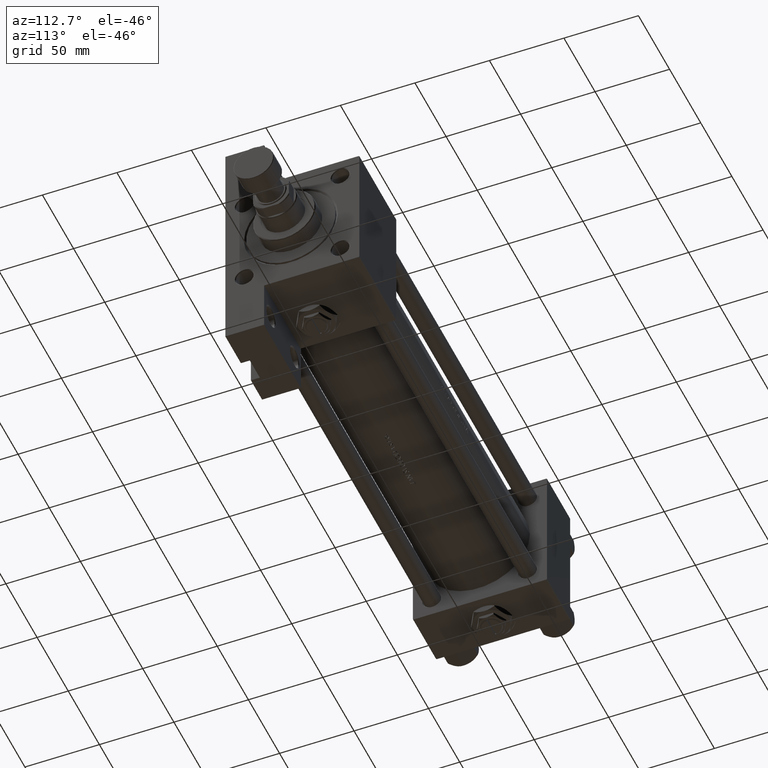
[diagram: clean part render]
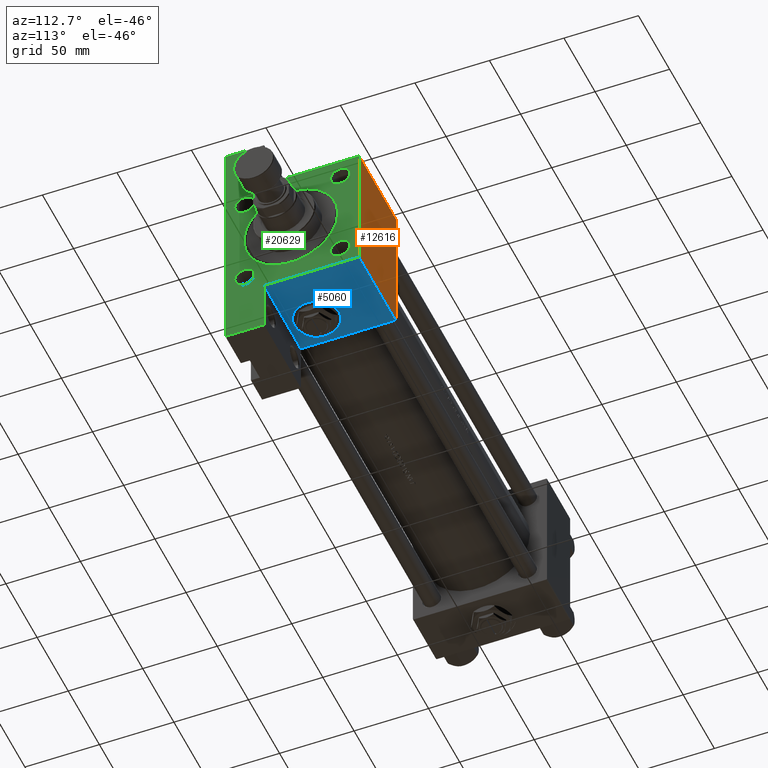
[diagram: same view with three faces highlighted in distinct colors, each labeled with its STEP entity id]
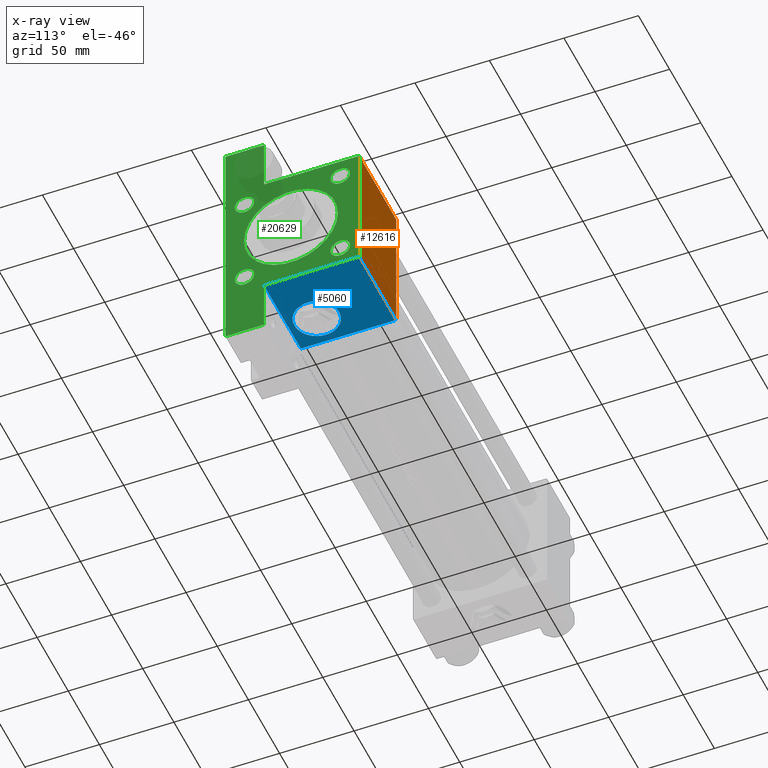
[diagram: x-ray of the same camera — body ghosted, the three highlighted faces saturated]
A machine part, auxiliary view with three faces highlighted in distinct colors.
The next image is the same camera in x-ray (body ghosted, the three faces saturated) — at least one of them is partly hidden behind the body in this view.
Their STEP definitions:

[orange] entity #12616 — the highlighted planar face has unit normal (0, -1, -0).
#102 = VERTEX_POINT ( 'NONE', #15625 ) ;
#1323 = ORIENTED_EDGE ( 'NONE', *, *, #30896, .F. ) ;
#3008 = VERTEX_POINT ( 'NONE', #27130 ) ;
#3516 = VERTEX_POINT ( 'NONE', #39500 ) ;
#4083 = EDGE_LOOP ( 'NONE', ( #1323, #29032, #5149, #20245 ) ) ;
#5149 = ORIENTED_EDGE ( 'NONE', *, *, #17179, .T. ) ;
#5211 = CARTESIAN_POINT ( 'NONE',  ( 278.9999999999999432, 45.00000000000001421, 45.00000000000000000 ) ) ;
#5922 = CARTESIAN_POINT ( 'NONE',  ( 278.9999999999999432, 44.49999999999995737, 45.00000000000000000 ) ) ;
#6858 = VECTOR ( 'NONE', #15537, 1000.000000000000000 ) ;
#8476 = CARTESIAN_POINT ( 'NONE',  ( 337.9999999999999432, 45.00000000000001421, 45.00000000000000000 ) ) ;
#9228 = CARTESIAN_POINT ( 'NONE',  ( 337.9999999999999432, 44.49999999999995737, 45.00000000000000000 ) ) ;
#10705 = EDGE_CURVE ( 'NONE', #3008, #3516, #31831, .T. ) ;
#11267 = FACE_OUTER_BOUND ( 'NONE', #4083, .T. ) ;
#12616 = ADVANCED_FACE ( 'NONE', ( #11267 ), #18886, .F. ) ;
#15537 = DIRECTION ( 'NONE',  ( 0.000000000000000000, -1.000000000000000000, -1.541976423090495140E-16 ) ) ;
#15625 = CARTESIAN_POINT ( 'NONE',  ( 278.9999999999999432, 44.49999999999995737, 45.00000000000000000 ) ) ;
#15788 = CARTESIAN_POINT ( 'NONE',  ( 337.9999999999999432, 45.00000000000001421, 45.00000000000000000 ) ) ;
#17179 = EDGE_CURVE ( 'NONE', #102, #3008, #24738, .T. ) ;
#18886 = PLANE ( 'NONE',  #30820 ) ;
#20245 = ORIENTED_EDGE ( 'NONE', *, *, #10705, .T. ) ;
#22803 = VECTOR ( 'NONE', #26208, 1000.000000000000000 ) ;
#23157 = LINE ( 'NONE', #15788, #6858 ) ;
#23715 = DIRECTION ( 'NONE',  ( 1.000000000000000000, 0.000000000000000000, 0.000000000000000000 ) ) ;
#24606 = VERTEX_POINT ( 'NONE', #9228 ) ;
#24699 = EDGE_CURVE ( 'NONE', #24606, #102, #40699, .T. ) ;
#24738 = LINE ( 'NONE', #5211, #28356 ) ;
#26208 = DIRECTION ( 'NONE',  ( -1.000000000000000000, 0.000000000000000000, 0.000000000000000000 ) ) ;
#27130 = CARTESIAN_POINT ( 'NONE',  ( 278.9999999999999432, -44.49999999999997158, 44.99999999999998579 ) ) ;
#27527 = CARTESIAN_POINT ( 'NONE',  ( 337.9999999999999432, -44.50000000000000000, 44.99999999999998579 ) ) ;
#28356 = VECTOR ( 'NONE', #36177, 1000.000000000000000 ) ;
#29032 = ORIENTED_EDGE ( 'NONE', *, *, #24699, .T. ) ;
#30820 = AXIS2_PLACEMENT_3D ( 'NONE', #8476, #42267, #35143 ) ;
#30896 = EDGE_CURVE ( 'NONE', #24606, #3516, #23157, .T. ) ;
#31831 = LINE ( 'NONE', #27527, #35613 ) ;
#35143 = DIRECTION ( 'NONE',  ( 0.000000000000000000, 1.000000000000000000, 1.541976423090495387E-16 ) ) ;
#35613 = VECTOR ( 'NONE', #23715, 1000.000000000000000 ) ;
#36177 = DIRECTION ( 'NONE',  ( 0.000000000000000000, -1.000000000000000000, -1.541976423090495140E-16 ) ) ;
#39500 = CARTESIAN_POINT ( 'NONE',  ( 337.9999999999999432, -44.49999999999997158, 44.99999999999998579 ) ) ;
#40699 = LINE ( 'NONE', #5922, #22803 ) ;
#42267 = DIRECTION ( 'NONE',  ( 0.000000000000000000, 1.541976423090495387E-16, -1.000000000000000000 ) ) ;

[blue] entity #5060 — the highlighted planar face has unit normal (0, 0, -1).
#1120 = PLANE ( 'NONE',  #46741 ) ;
#3018 = EDGE_CURVE ( 'NONE', #5992, #12682, #42623, .T. ) ;
#4328 = CIRCLE ( 'NONE', #19752, 15.00000000000002487 ) ;
#4395 = ORIENTED_EDGE ( 'NONE', *, *, #3018, .T. ) ;
#4918 = VECTOR ( 'NONE', #46767, 1000.000000000000000 ) ;
#4935 = VERTEX_POINT ( 'NONE', #18881 ) ;
#5060 = ADVANCED_FACE ( 'NONE', ( #20383, #23702 ), #1120, .T. ) ;
#5992 = VERTEX_POINT ( 'NONE', #27411 ) ;
#6739 = DIRECTION ( 'NONE',  ( 0.000000000000000000, 0.000000000000000000, 1.000000000000000000 ) ) ;
#8947 = EDGE_CURVE ( 'NONE', #25109, #5992, #23132, .T. ) ;
#9787 = DIRECTION ( 'NONE',  ( 0.000000000000000000, 1.000000000000000000, 0.000000000000000000 ) ) ;
#10996 = ORIENTED_EDGE ( 'NONE', *, *, #13813, .F. ) ;
#11767 = CARTESIAN_POINT ( 'NONE',  ( 337.9999999999999432, 45.00000000000001421, 45.00000000000000000 ) ) ;
#11936 = VECTOR ( 'NONE', #30938, 1000.000000000000000 ) ;
#12356 = EDGE_LOOP ( 'NONE', ( #33372, #29612 ) ) ;
#12631 = VECTOR ( 'NONE', #33124, 1000.000000000000000 ) ;
#12682 = VERTEX_POINT ( 'NONE', #13020 ) ;
#13020 = CARTESIAN_POINT ( 'NONE',  ( 337.9999999999999432, 44.99999999999992895, -19.00000000000000000 ) ) ;
#13813 = EDGE_CURVE ( 'NONE', #25109, #26852, #31029, .T. ) ;
#15763 = CARTESIAN_POINT ( 'NONE',  ( 337.9999999999999432, 45.00000000000001421, 44.49999999999994316 ) ) ;
#16989 = AXIS2_PLACEMENT_3D ( 'NONE', #49563, #49306, #34327 ) ;
#18881 = CARTESIAN_POINT ( 'NONE',  ( 299.0000000000000000, 45.00000000000001421, 15.00000000000002487 ) ) ;
#19303 = DIRECTION ( 'NONE',  ( 1.000000000000000000, 0.000000000000000000, 0.000000000000000000 ) ) ;
#19458 = ORIENTED_EDGE ( 'NONE', *, *, #38460, .T. ) ;
#19752 = AXIS2_PLACEMENT_3D ( 'NONE', #29351, #9787, #6739 ) ;
#20383 = FACE_BOUND ( 'NONE', #12356, .T. ) ;
#20768 = CARTESIAN_POINT ( 'NONE',  ( 299.0000000000000000, 45.00000000000001421, -15.00000000000002487 ) ) ;
#21083 = EDGE_CURVE ( 'NONE', #4935, #30064, #27562, .T. ) ;
#22477 = ORIENTED_EDGE ( 'NONE', *, *, #8947, .T. ) ;
#23132 = LINE ( 'NONE', #15763, #38004 ) ;
#23702 = FACE_OUTER_BOUND ( 'NONE', #27727, .T. ) ;
#24301 = CARTESIAN_POINT ( 'NONE',  ( 278.9999999999999432, 45.00000000000001421, -18.99999999999997513 ) ) ;
#25109 = VERTEX_POINT ( 'NONE', #40895 ) ;
#26852 = VERTEX_POINT ( 'NONE', #24301 ) ;
#27411 = CARTESIAN_POINT ( 'NONE',  ( 337.9999999999999432, 45.00000000000001421, 44.49999999999994316 ) ) ;
#27562 = CIRCLE ( 'NONE', #16989, 15.00000000000002487 ) ;
#27727 = EDGE_LOOP ( 'NONE', ( #10996, #22477, #4395, #19458 ) ) ;
#29351 = CARTESIAN_POINT ( 'NONE',  ( 299.0000000000000000, 45.00000000000001421, 0.000000000000000000 ) ) ;
#29612 = ORIENTED_EDGE ( 'NONE', *, *, #29652, .F. ) ;
#29652 = EDGE_CURVE ( 'NONE', #30064, #4935, #4328, .T. ) ;
#30064 = VERTEX_POINT ( 'NONE', #20768 ) ;
#30938 = DIRECTION ( 'NONE',  ( 0.000000000000000000, 0.000000000000000000, -1.000000000000000000 ) ) ;
#31029 = LINE ( 'NONE', #46516, #4918 ) ;
#32129 = LINE ( 'NONE', #44566, #12631 ) ;
#33124 = DIRECTION ( 'NONE',  ( -1.000000000000000000, 1.411300455031978640E-15, -0.000000000000000000 ) ) ;
#33372 = ORIENTED_EDGE ( 'NONE', *, *, #21083, .F. ) ;
#34327 = DIRECTION ( 'NONE',  ( 0.000000000000000000, 0.000000000000000000, 1.000000000000000000 ) ) ;
#38004 = VECTOR ( 'NONE', #19303, 1000.000000000000000 ) ;
#38460 = EDGE_CURVE ( 'NONE', #12682, #26852, #32129, .T. ) ;
#39203 = DIRECTION ( 'NONE',  ( -0.000000000000000000, 1.000000000000000000, 0.000000000000000000 ) ) ;
#40895 = CARTESIAN_POINT ( 'NONE',  ( 278.9999999999999432, 45.00000000000001421, 44.49999999999994316 ) ) ;
#42623 = LINE ( 'NONE', #45925, #11936 ) ;
#44566 = CARTESIAN_POINT ( 'NONE',  ( 278.9999999999999432, 45.00000000000001421, -19.00000000000000000 ) ) ;
#45925 = CARTESIAN_POINT ( 'NONE',  ( 337.9999999999999432, 45.00000000000001421, 45.00000000000000000 ) ) ;
#46516 = CARTESIAN_POINT ( 'NONE',  ( 278.9999999999999432, 45.00000000000001421, 45.00000000000000000 ) ) ;
#46741 = AXIS2_PLACEMENT_3D ( 'NONE', #11767, #39203, #47314 ) ;
#46767 = DIRECTION ( 'NONE',  ( 0.000000000000000000, 0.000000000000000000, -1.000000000000000000 ) ) ;
#47314 = DIRECTION ( 'NONE',  ( 0.000000000000000000, -0.000000000000000000, 1.000000000000000000 ) ) ;
#49306 = DIRECTION ( 'NONE',  ( 0.000000000000000000, 1.000000000000000000, 0.000000000000000000 ) ) ;
#49563 = CARTESIAN_POINT ( 'NONE',  ( 299.0000000000000000, 45.00000000000001421, 0.000000000000000000 ) ) ;

[green] entity #20629 — the highlighted planar face has unit normal (-1, 0, -0).
#756 = CIRCLE ( 'NONE', #13700, 6.499999999999950262 ) ;
#923 = VECTOR ( 'NONE', #25847, 1000.000000000000000 ) ;
#1228 = DIRECTION ( 'NONE',  ( -0.000000000000000000, -0.7071067811865474617, -0.7071067811865474617 ) ) ;
#2004 = EDGE_CURVE ( 'NONE', #44232, #39288, #42730, .T. ) ;
#2336 = VERTEX_POINT ( 'NONE', #37004 ) ;
#3018 = EDGE_CURVE ( 'NONE', #5992, #12682, #42623, .T. ) ;
#3406 = DIRECTION ( 'NONE',  ( -1.000000000000000000, -0.000000000000000000, -0.000000000000000000 ) ) ;
#3516 = VERTEX_POINT ( 'NONE', #39500 ) ;
#3526 = CARTESIAN_POINT ( 'NONE',  ( 337.9999999999999432, 32.14999999999999147, -32.15000000000000568 ) ) ;
#3775 = DIRECTION ( 'NONE',  ( -1.000000000000000000, -0.000000000000000000, -0.000000000000000000 ) ) ;
#3867 = CIRCLE ( 'NONE', #39530, 6.499999999999950262 ) ;
#4065 = CIRCLE ( 'NONE', #24311, 6.499999999999950262 ) ;
#4299 = LINE ( 'NONE', #19766, #45328 ) ;
#4377 = CARTESIAN_POINT ( 'NONE',  ( 337.9999999999999432, 0.000000000000000000, -1.000000000000000888 ) ) ;
#4486 = LINE ( 'NONE', #18947, #39266 ) ;
#4634 = CARTESIAN_POINT ( 'NONE',  ( 337.9999999999999432, -32.15000000000001279, -32.15000000000000568 ) ) ;
#5122 = LINE ( 'NONE', #28218, #11667 ) ;
#5635 = CIRCLE ( 'NONE', #43770, 6.499999999999950262 ) ;
#5714 = CARTESIAN_POINT ( 'NONE',  ( 337.9999999999999432, 79.99999999999998579, -19.00000000000000000 ) ) ;
#5850 = DIRECTION ( 'NONE',  ( -1.000000000000000000, -0.000000000000000000, -0.000000000000000000 ) ) ;
#5992 = VERTEX_POINT ( 'NONE', #27411 ) ;
#6026 = ORIENTED_EDGE ( 'NONE', *, *, #30896, .T. ) ;
#6110 = VERTEX_POINT ( 'NONE', #43658 ) ;
#6654 = EDGE_CURVE ( 'NONE', #6110, #10194, #3867, .T. ) ;
#6842 = DIRECTION ( 'NONE',  ( -1.000000000000000000, 0.000000000000000000, -0.000000000000000000 ) ) ;
#6858 = VECTOR ( 'NONE', #15537, 1000.000000000000000 ) ;
#7314 = CIRCLE ( 'NONE', #10578, 31.49999999999997158 ) ;
#7764 = LINE ( 'NONE', #39005, #45071 ) ;
#7786 = CIRCLE ( 'NONE', #36180, 6.499999999999950262 ) ;
#8678 = DIRECTION ( 'NONE',  ( 0.000000000000000000, 0.000000000000000000, 1.000000000000000000 ) ) ;
#8931 = VERTEX_POINT ( 'NONE', #22375 ) ;
#9056 = CARTESIAN_POINT ( 'NONE',  ( 337.9999999999999432, -32.15000000000001279, -32.15000000000000568 ) ) ;
#9105 = CARTESIAN_POINT ( 'NONE',  ( 337.9999999999999432, 79.99999999999998579, -45.00000000000000000 ) ) ;
#9212 = CIRCLE ( 'NONE', #19748, 6.499999999999950262 ) ;
#9228 = CARTESIAN_POINT ( 'NONE',  ( 337.9999999999999432, 44.49999999999995737, 45.00000000000000000 ) ) ;
#10061 = ORIENTED_EDGE ( 'NONE', *, *, #15419, .T. ) ;
#10116 = LINE ( 'NONE', #45164, #923 ) ;
#10120 = EDGE_CURVE ( 'NONE', #16055, #8931, #4299, .T. ) ;
#10144 = FACE_BOUND ( 'NONE', #48028, .T. ) ;
#10194 = VERTEX_POINT ( 'NONE', #44894 ) ;
#10578 = AXIS2_PLACEMENT_3D ( 'NONE', #26562, #27572, #23006 ) ;
#10755 = EDGE_LOOP ( 'NONE', ( #40705, #23123, #6026, #44096, #11755, #16861, #10061, #40105, #49550, #47749 ) ) ;
#11483 = ORIENTED_EDGE ( 'NONE', *, *, #45547, .T. ) ;
#11667 = VECTOR ( 'NONE', #34837, 1000.000000000000114 ) ;
#11755 = ORIENTED_EDGE ( 'NONE', *, *, #37503, .T. ) ;
#11936 = VECTOR ( 'NONE', #30938, 1000.000000000000000 ) ;
#12169 = CARTESIAN_POINT ( 'NONE',  ( 337.9999999999999432, 32.14999999999999147, 38.64999999999995595 ) ) ;
#12627 = LINE ( 'NONE', #29825, #27601 ) ;
#12645 = LINE ( 'NONE', #27651, #21746 ) ;
#12682 = VERTEX_POINT ( 'NONE', #13020 ) ;
#13020 = CARTESIAN_POINT ( 'NONE',  ( 337.9999999999999432, 44.99999999999992895, -19.00000000000000000 ) ) ;
#13700 = AXIS2_PLACEMENT_3D ( 'NONE', #47397, #27599, #20715 ) ;
#14237 = ORIENTED_EDGE ( 'NONE', *, *, #46610, .T. ) ;
#14447 = PLANE ( 'NONE',  #19422 ) ;
#14745 = CARTESIAN_POINT ( 'NONE',  ( 337.9999999999999432, -32.14999999999999147, 25.65000000000004121 ) ) ;
#15419 = EDGE_CURVE ( 'NONE', #35065, #8931, #12645, .T. ) ;
#15537 = DIRECTION ( 'NONE',  ( 0.000000000000000000, -1.000000000000000000, -1.541976423090495140E-16 ) ) ;
#15788 = CARTESIAN_POINT ( 'NONE',  ( 337.9999999999999432, 45.00000000000001421, 45.00000000000000000 ) ) ;
#16055 = VERTEX_POINT ( 'NONE', #9105 ) ;
#16136 = DIRECTION ( 'NONE',  ( 0.000000000000000000, -1.000000000000000000, 0.000000000000000000 ) ) ;
#16422 = EDGE_CURVE ( 'NONE', #23546, #35916, #756, .T. ) ;
#16539 = DIRECTION ( 'NONE',  ( -1.000000000000000000, -0.000000000000000000, -0.000000000000000000 ) ) ;
#16861 = ORIENTED_EDGE ( 'NONE', *, *, #48633, .T. ) ;
#17257 = EDGE_CURVE ( 'NONE', #35916, #23546, #5635, .T. ) ;
#17996 = CARTESIAN_POINT ( 'NONE',  ( 337.9999999999999432, 0.000000000000000000, 0.000000000000000000 ) ) ;
#18020 = DIRECTION ( 'NONE',  ( 0.000000000000000000, 0.000000000000000000, 1.000000000000000000 ) ) ;
#18087 = CARTESIAN_POINT ( 'NONE',  ( 337.9999999999999432, -44.99999999999999289, -18.99999999999997513 ) ) ;
#18757 = CIRCLE ( 'NONE', #24418, 31.49999999999997158 ) ;
#18947 = CARTESIAN_POINT ( 'NONE',  ( 337.9999999999999432, 79.99999999999998579, -19.00000000000000000 ) ) ;
#19124 = EDGE_CURVE ( 'NONE', #3516, #27621, #12627, .T. ) ;
#19422 = AXIS2_PLACEMENT_3D ( 'NONE', #17996, #6842, #25625 ) ;
#19736 = DIRECTION ( 'NONE',  ( 0.000000000000000000, 0.000000000000000000, 1.000000000000000000 ) ) ;
#19748 = AXIS2_PLACEMENT_3D ( 'NONE', #9056, #44336, #48141 ) ;
#19766 = CARTESIAN_POINT ( 'NONE',  ( 337.9999999999999432, 45.00000000000001421, -45.00000000000000000 ) ) ;
#20629 = ADVANCED_FACE ( 'NONE', ( #37572, #33502, #41633, #21811, #10144, #37314 ), #14447, .F. ) ;
#20715 = DIRECTION ( 'NONE',  ( 0.000000000000000000, 0.000000000000000000, 1.000000000000000000 ) ) ;
#21405 = CIRCLE ( 'NONE', #41691, 6.499999999999950262 ) ;
#21746 = VECTOR ( 'NONE', #40071, 1000.000000000000000 ) ;
#21811 = FACE_BOUND ( 'NONE', #42665, .T. ) ;
#22029 = EDGE_LOOP ( 'NONE', ( #39840, #28224 ) ) ;
#22375 = CARTESIAN_POINT ( 'NONE',  ( 337.9999999999999432, -80.00000000000004263, -45.00000000000000000 ) ) ;
#23006 = DIRECTION ( 'NONE',  ( 0.000000000000000000, 0.000000000000000000, 1.000000000000000000 ) ) ;
#23123 = ORIENTED_EDGE ( 'NONE', *, *, #34458, .T. ) ;
#23157 = LINE ( 'NONE', #15788, #6858 ) ;
#23546 = VERTEX_POINT ( 'NONE', #30823 ) ;
#23757 = DIRECTION ( 'NONE',  ( 0.000000000000000000, 7.709882115452478166E-17, -1.000000000000000000 ) ) ;
#23774 = CARTESIAN_POINT ( 'NONE',  ( 337.9999999999999432, 79.99999999999998579, -19.00000000000000000 ) ) ;
#24311 = AXIS2_PLACEMENT_3D ( 'NONE', #3526, #3775, #19736 ) ;
#24418 = AXIS2_PLACEMENT_3D ( 'NONE', #4377, #43962, #8678 ) ;
#24606 = VERTEX_POINT ( 'NONE', #9228 ) ;
#25172 = ORIENTED_EDGE ( 'NONE', *, *, #38637, .T. ) ;
#25625 = DIRECTION ( 'NONE',  ( -0.000000000000000000, 0.000000000000000000, 1.000000000000000000 ) ) ;
#25847 = DIRECTION ( 'NONE',  ( -0.000000000000000000, -1.000000000000000000, -0.000000000000000000 ) ) ;
#26245 = ORIENTED_EDGE ( 'NONE', *, *, #6654, .T. ) ;
#26562 = CARTESIAN_POINT ( 'NONE',  ( 337.9999999999999432, 0.000000000000000000, -1.000000000000000888 ) ) ;
#27411 = CARTESIAN_POINT ( 'NONE',  ( 337.9999999999999432, 45.00000000000001421, 44.49999999999994316 ) ) ;
#27572 = DIRECTION ( 'NONE',  ( -1.000000000000000000, -0.000000000000000000, -0.000000000000000000 ) ) ;
#27586 = LINE ( 'NONE', #23774, #40090 ) ;
#27599 = DIRECTION ( 'NONE',  ( -1.000000000000000000, -0.000000000000000000, -0.000000000000000000 ) ) ;
#27601 = VECTOR ( 'NONE', #1228, 1000.000000000000114 ) ;
#27621 = VERTEX_POINT ( 'NONE', #40543 ) ;
#27651 = CARTESIAN_POINT ( 'NONE',  ( 337.9999999999999432, -80.00000000000004263, -19.00000000000000000 ) ) ;
#28218 = CARTESIAN_POINT ( 'NONE',  ( 337.9999999999999432, 44.49999999999995737, 45.00000000000000000 ) ) ;
#28224 = ORIENTED_EDGE ( 'NONE', *, *, #17257, .T. ) ;
#29396 = CARTESIAN_POINT ( 'NONE',  ( 337.9999999999999432, -32.14999999999999147, 38.64999999999994174 ) ) ;
#29579 = DIRECTION ( 'NONE',  ( -1.000000000000000000, -0.000000000000000000, -0.000000000000000000 ) ) ;
#29825 = CARTESIAN_POINT ( 'NONE',  ( 337.9999999999999432, -45.00000000000000000, 44.49999999999998579 ) ) ;
#30062 = CARTESIAN_POINT ( 'NONE',  ( 337.9999999999999432, 32.14999999999999147, 32.15000000000000568 ) ) ;
#30549 = DIRECTION ( 'NONE',  ( 0.000000000000000000, 0.000000000000000000, 1.000000000000000000 ) ) ;
#30823 = CARTESIAN_POINT ( 'NONE',  ( 337.9999999999999432, 32.14999999999999147, 25.65000000000005542 ) ) ;
#30896 = EDGE_CURVE ( 'NONE', #24606, #3516, #23157, .T. ) ;
#30938 = DIRECTION ( 'NONE',  ( 0.000000000000000000, 0.000000000000000000, -1.000000000000000000 ) ) ;
#31162 = EDGE_LOOP ( 'NONE', ( #47651, #25172 ) ) ;
#31533 = DIRECTION ( 'NONE',  ( 0.000000000000000000, 0.000000000000000000, 1.000000000000000000 ) ) ;
#31743 = EDGE_CURVE ( 'NONE', #37545, #12682, #4486, .T. ) ;
#31814 = EDGE_CURVE ( 'NONE', #37545, #16055, #27586, .T. ) ;
#33502 = FACE_BOUND ( 'NONE', #31162, .T. ) ;
#33575 = EDGE_CURVE ( 'NONE', #10194, #6110, #9212, .T. ) ;
#33921 = VERTEX_POINT ( 'NONE', #48583 ) ;
#33928 = ORIENTED_EDGE ( 'NONE', *, *, #33575, .T. ) ;
#34458 = EDGE_CURVE ( 'NONE', #5992, #24606, #5122, .T. ) ;
#34809 = EDGE_CURVE ( 'NONE', #2336, #39408, #21405, .T. ) ;
#34837 = DIRECTION ( 'NONE',  ( 0.000000000000000000, -0.7071067811865474617, 0.7071067811865474617 ) ) ;
#34956 = CARTESIAN_POINT ( 'NONE',  ( 337.9999999999999432, 32.14999999999999147, -25.65000000000005542 ) ) ;
#35065 = VERTEX_POINT ( 'NONE', #36274 ) ;
#35273 = DIRECTION ( 'NONE',  ( 0.000000000000000000, -1.000000000000000000, 0.000000000000000000 ) ) ;
#35351 = ORIENTED_EDGE ( 'NONE', *, *, #48215, .T. ) ;
#35916 = VERTEX_POINT ( 'NONE', #12169 ) ;
#36180 = AXIS2_PLACEMENT_3D ( 'NONE', #37701, #29579, #46055 ) ;
#36205 = DIRECTION ( 'NONE',  ( 0.000000000000000000, 0.000000000000000000, -1.000000000000000000 ) ) ;
#36274 = CARTESIAN_POINT ( 'NONE',  ( 337.9999999999999432, -80.00000000000004263, -19.00000000000000000 ) ) ;
#36316 = DIRECTION ( 'NONE',  ( 0.000000000000000000, 0.000000000000000000, 1.000000000000000000 ) ) ;
#37004 = CARTESIAN_POINT ( 'NONE',  ( 337.9999999999999432, 32.14999999999999147, -38.64999999999996305 ) ) ;
#37071 = CARTESIAN_POINT ( 'NONE',  ( 337.9999999999999432, -32.14999999999999147, 32.14999999999999147 ) ) ;
#37314 = FACE_OUTER_BOUND ( 'NONE', #10755, .T. ) ;
#37503 = EDGE_CURVE ( 'NONE', #27621, #47944, #7764, .T. ) ;
#37545 = VERTEX_POINT ( 'NONE', #5714 ) ;
#37572 = FACE_BOUND ( 'NONE', #22029, .T. ) ;
#37701 = CARTESIAN_POINT ( 'NONE',  ( 337.9999999999999432, -32.14999999999999147, 32.14999999999999147 ) ) ;
#38637 = EDGE_CURVE ( 'NONE', #39288, #44232, #7786, .T. ) ;
#39005 = CARTESIAN_POINT ( 'NONE',  ( 337.9999999999999432, -45.00000000000000000, 44.99999999999998579 ) ) ;
#39061 = VERTEX_POINT ( 'NONE', #44954 ) ;
#39266 = VECTOR ( 'NONE', #16136, 1000.000000000000000 ) ;
#39288 = VERTEX_POINT ( 'NONE', #29396 ) ;
#39408 = VERTEX_POINT ( 'NONE', #34956 ) ;
#39500 = CARTESIAN_POINT ( 'NONE',  ( 337.9999999999999432, -44.49999999999997158, 44.99999999999998579 ) ) ;
#39530 = AXIS2_PLACEMENT_3D ( 'NONE', #4634, #16539, #31533 ) ;
#39840 = ORIENTED_EDGE ( 'NONE', *, *, #16422, .T. ) ;
#40071 = DIRECTION ( 'NONE',  ( 0.000000000000000000, 0.000000000000000000, -1.000000000000000000 ) ) ;
#40090 = VECTOR ( 'NONE', #36205, 1000.000000000000000 ) ;
#40105 = ORIENTED_EDGE ( 'NONE', *, *, #10120, .F. ) ;
#40543 = CARTESIAN_POINT ( 'NONE',  ( 337.9999999999999432, -45.00000000000000000, 44.49999999999998579 ) ) ;
#40705 = ORIENTED_EDGE ( 'NONE', *, *, #3018, .F. ) ;
#41633 = FACE_BOUND ( 'NONE', #42318, .T. ) ;
#41691 = AXIS2_PLACEMENT_3D ( 'NONE', #45465, #42158, #18020 ) ;
#42158 = DIRECTION ( 'NONE',  ( -1.000000000000000000, -0.000000000000000000, -0.000000000000000000 ) ) ;
#42318 = EDGE_LOOP ( 'NONE', ( #26245, #33928 ) ) ;
#42623 = LINE ( 'NONE', #45925, #11936 ) ;
#42665 = EDGE_LOOP ( 'NONE', ( #44131, #11483 ) ) ;
#42730 = CIRCLE ( 'NONE', #46780, 6.499999999999950262 ) ;
#43658 = CARTESIAN_POINT ( 'NONE',  ( 337.9999999999999432, -32.15000000000001279, -38.64999999999996305 ) ) ;
#43770 = AXIS2_PLACEMENT_3D ( 'NONE', #30062, #3406, #30549 ) ;
#43962 = DIRECTION ( 'NONE',  ( -1.000000000000000000, -0.000000000000000000, -0.000000000000000000 ) ) ;
#44096 = ORIENTED_EDGE ( 'NONE', *, *, #19124, .T. ) ;
#44131 = ORIENTED_EDGE ( 'NONE', *, *, #34809, .T. ) ;
#44232 = VERTEX_POINT ( 'NONE', #14745 ) ;
#44336 = DIRECTION ( 'NONE',  ( -1.000000000000000000, -0.000000000000000000, -0.000000000000000000 ) ) ;
#44894 = CARTESIAN_POINT ( 'NONE',  ( 337.9999999999999432, -32.15000000000001279, -25.65000000000005542 ) ) ;
#44954 = CARTESIAN_POINT ( 'NONE',  ( 337.9999999999999432, 3.857637417314158745E-15, 30.49999999999997158 ) ) ;
#45071 = VECTOR ( 'NONE', #23757, 1000.000000000000000 ) ;
#45164 = CARTESIAN_POINT ( 'NONE',  ( 337.9999999999999432, -80.00000000000004263, -19.00000000000000000 ) ) ;
#45328 = VECTOR ( 'NONE', #35273, 1000.000000000000000 ) ;
#45465 = CARTESIAN_POINT ( 'NONE',  ( 337.9999999999999432, 32.14999999999999147, -32.15000000000000568 ) ) ;
#45547 = EDGE_CURVE ( 'NONE', #39408, #2336, #4065, .T. ) ;
#45925 = CARTESIAN_POINT ( 'NONE',  ( 337.9999999999999432, 45.00000000000001421, 45.00000000000000000 ) ) ;
#46055 = DIRECTION ( 'NONE',  ( 0.000000000000000000, 0.000000000000000000, 1.000000000000000000 ) ) ;
#46610 = EDGE_CURVE ( 'NONE', #33921, #39061, #7314, .T. ) ;
#46780 = AXIS2_PLACEMENT_3D ( 'NONE', #37071, #5850, #36316 ) ;
#47397 = CARTESIAN_POINT ( 'NONE',  ( 337.9999999999999432, 32.14999999999999147, 32.15000000000000568 ) ) ;
#47651 = ORIENTED_EDGE ( 'NONE', *, *, #2004, .T. ) ;
#47749 = ORIENTED_EDGE ( 'NONE', *, *, #31743, .T. ) ;
#47944 = VERTEX_POINT ( 'NONE', #18087 ) ;
#48028 = EDGE_LOOP ( 'NONE', ( #14237, #35351 ) ) ;
#48141 = DIRECTION ( 'NONE',  ( 0.000000000000000000, 0.000000000000000000, 1.000000000000000000 ) ) ;
#48215 = EDGE_CURVE ( 'NONE', #39061, #33921, #18757, .T. ) ;
#48583 = CARTESIAN_POINT ( 'NONE',  ( 337.9999999999999432, 0.000000000000000000, -32.49999999999997158 ) ) ;
#48633 = EDGE_CURVE ( 'NONE', #47944, #35065, #10116, .T. ) ;
#49550 = ORIENTED_EDGE ( 'NONE', *, *, #31814, .F. ) ;